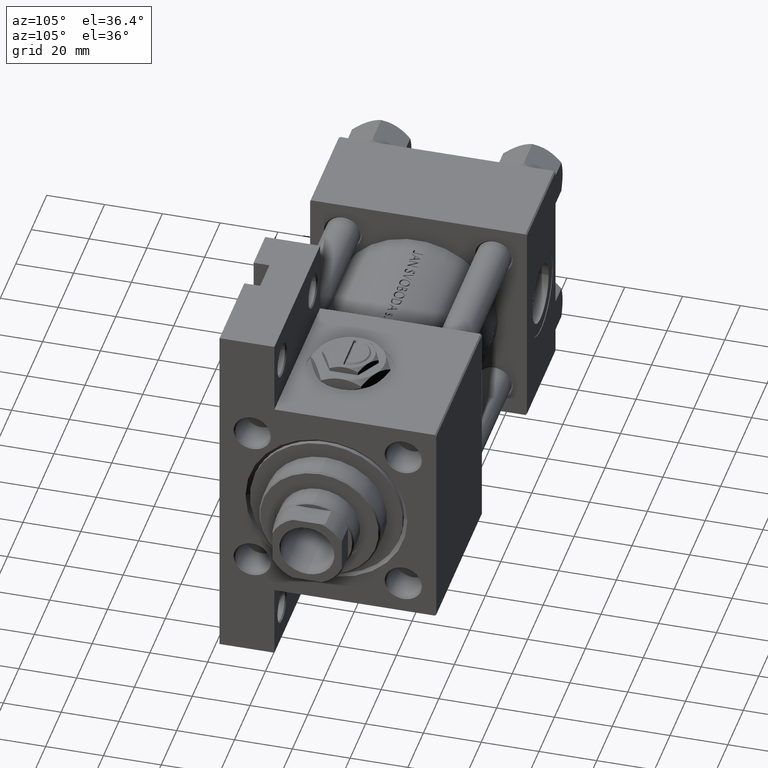
[diagram: clean part render]
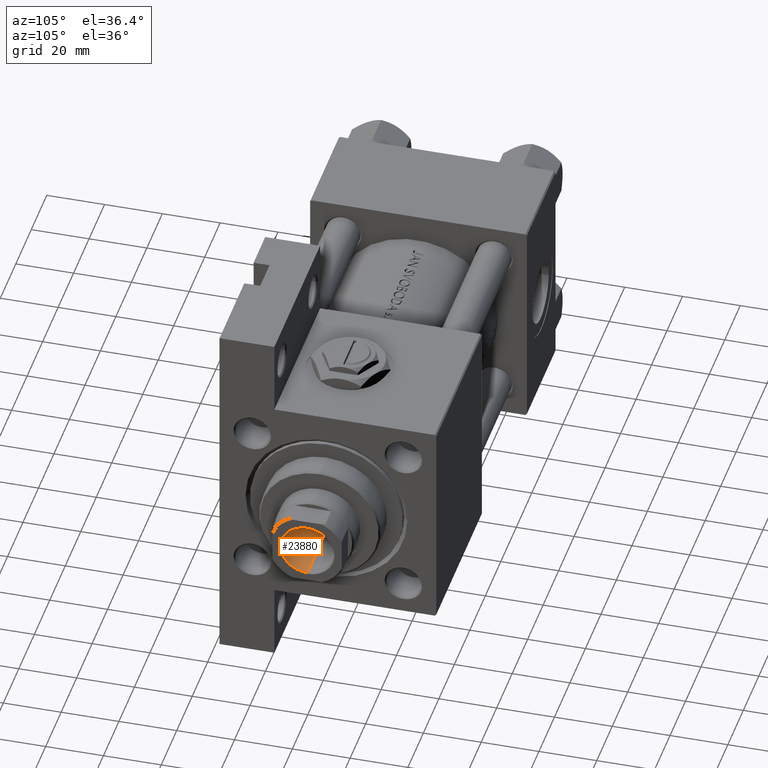
[diagram: same view with one face highlighted and labeled with its STEP entity id]
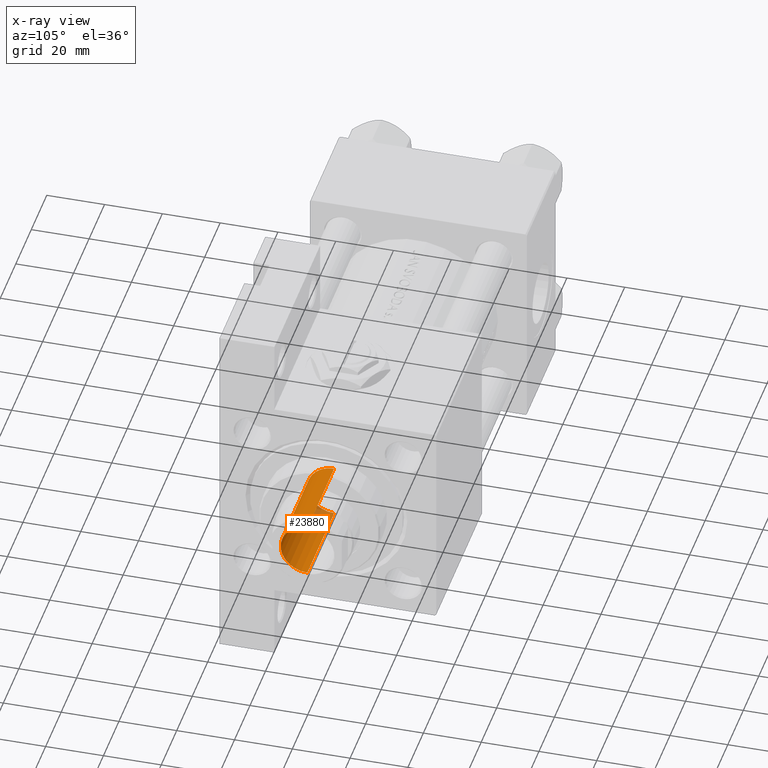
[diagram: x-ray of the same camera — body ghosted, the highlighted face saturated]
A machine part, auxiliary view. The second image highlights one B-rep face of the part: STEP entity #23880.
The next image is the same camera in x-ray: the body ghosted, the highlighted face saturated — about 14% of this face is hidden behind the body in this view.
In plain terms, the highlighted cylindrical surface (edge-blend (fillet) strip) has radius 9.25 mm, axis along (1, 0, 0).
Its self-contained STEP definition (entity closure, byte-faithful):
#564 = VERTEX_POINT ( 'NONE', #46395 ) ;
#1354 = LINE ( 'NONE', #8863, #40166 ) ;
#1932 = CIRCLE ( 'NONE', #47476, 9.249999999999992895 ) ;
#3443 = VERTEX_POINT ( 'NONE', #22115 ) ;
#3635 = VERTEX_POINT ( 'NONE', #4375 ) ;
#4375 = CARTESIAN_POINT ( 'NONE',  ( 9.249999999999992895, 0.000000000000000000, 107.0000000000000142 ) ) ;
#4848 = DIRECTION ( 'NONE',  ( 1.000000000000000000, 0.000000000000000000, 0.000000000000000000 ) ) ;
#5503 = CARTESIAN_POINT ( 'NONE',  ( -9.249999999999994671, 1.132798289211300909E-15, 142.0000000000000284 ) ) ;
#5849 = DIRECTION ( 'NONE',  ( 1.000000000000000000, 0.000000000000000000, 0.000000000000000000 ) ) ;
#8863 = CARTESIAN_POINT ( 'NONE',  ( 9.249999999999994671, 0.000000000000000000, 142.0000000000000284 ) ) ;
#9515 = LINE ( 'NONE', #5503, #18170 ) ;
#10153 = EDGE_CURVE ( 'NONE', #564, #31768, #27761, .T. ) ;
#15856 = DIRECTION ( 'NONE',  ( -0.000000000000000000, -0.000000000000000000, 1.000000000000000000 ) ) ;
#16089 = DIRECTION ( 'NONE',  ( -0.000000000000000000, -0.000000000000000000, 1.000000000000000000 ) ) ;
#17385 = ORIENTED_EDGE ( 'NONE', *, *, #10153, .T. ) ;
#18170 = VECTOR ( 'NONE', #20733, 1000.000000000000000 ) ;
#20733 = DIRECTION ( 'NONE',  ( -0.000000000000000000, -0.000000000000000000, 1.000000000000000000 ) ) ;
#22115 = CARTESIAN_POINT ( 'NONE',  ( -9.249999999999992895, 1.132798289211300712E-15, 107.0000000000000142 ) ) ;
#22248 = EDGE_LOOP ( 'NONE', ( #28540, #31604, #23301, #17385 ) ) ;
#23301 = ORIENTED_EDGE ( 'NONE', *, *, #25624, .T. ) ;
#23807 = CARTESIAN_POINT ( 'NONE',  ( 0.000000000000000000, 0.000000000000000000, 142.0000000000000284 ) ) ;
#23880 = ADVANCED_FACE ( 'NONE', ( #45860 ), #46107, .F. ) ;
#24379 = DIRECTION ( 'NONE',  ( 1.000000000000000000, 0.000000000000000000, 0.000000000000000000 ) ) ;
#25624 = EDGE_CURVE ( 'NONE', #3635, #564, #1354, .T. ) ;
#27761 = CIRCLE ( 'NONE', #44558, 9.249999999999994671 ) ;
#28540 = ORIENTED_EDGE ( 'NONE', *, *, #46728, .F. ) ;
#29685 = CARTESIAN_POINT ( 'NONE',  ( -9.249999999999994671, 1.132798289211300909E-15, 141.7000000000000171 ) ) ;
#31604 = ORIENTED_EDGE ( 'NONE', *, *, #35085, .F. ) ;
#31768 = VERTEX_POINT ( 'NONE', #29685 ) ;
#32915 = AXIS2_PLACEMENT_3D ( 'NONE', #23807, #16089, #4848 ) ;
#35085 = EDGE_CURVE ( 'NONE', #3635, #3443, #1932, .T. ) ;
#39106 = CARTESIAN_POINT ( 'NONE',  ( 0.000000000000000000, 0.000000000000000000, 141.7000000000000171 ) ) ;
#39173 = DIRECTION ( 'NONE',  ( -0.000000000000000000, -0.000000000000000000, 1.000000000000000000 ) ) ;
#40166 = VECTOR ( 'NONE', #15856, 1000.000000000000000 ) ;
#42865 = DIRECTION ( 'NONE',  ( 0.000000000000000000, 0.000000000000000000, 1.000000000000000000 ) ) ;
#44558 = AXIS2_PLACEMENT_3D ( 'NONE', #39106, #42865, #5849 ) ;
#45860 = FACE_OUTER_BOUND ( 'NONE', #22248, .T. ) ;
#46107 = CYLINDRICAL_SURFACE ( 'NONE', #32915, 9.249999999999994671 ) ;
#46395 = CARTESIAN_POINT ( 'NONE',  ( 9.249999999999994671, 0.000000000000000000, 141.7000000000000171 ) ) ;
#46728 = EDGE_CURVE ( 'NONE', #3443, #31768, #9515, .T. ) ;
#47433 = CARTESIAN_POINT ( 'NONE',  ( 0.000000000000000000, 0.000000000000000000, 107.0000000000000142 ) ) ;
#47476 = AXIS2_PLACEMENT_3D ( 'NONE', #47433, #39173, #24379 ) ;